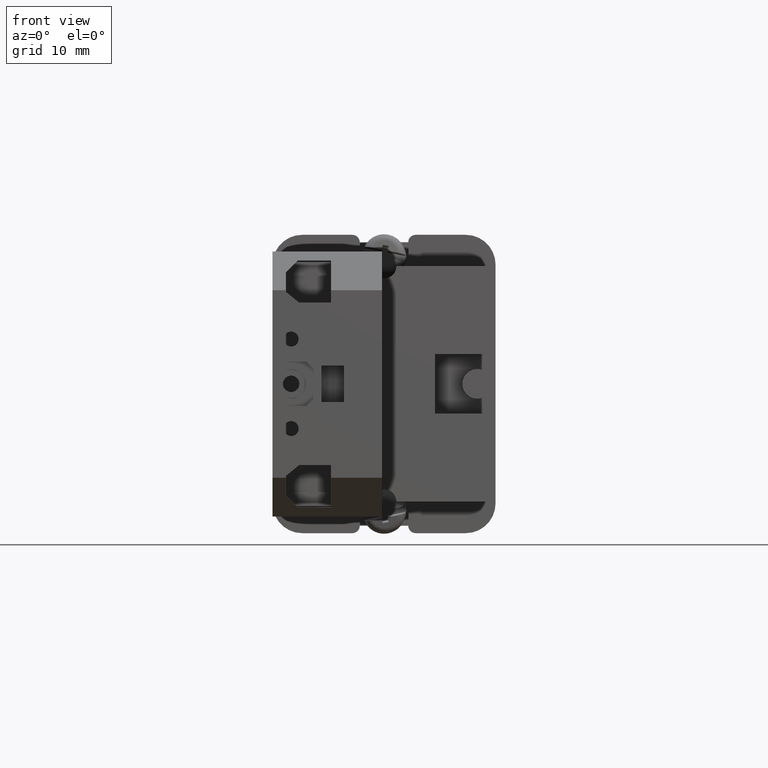
[diagram: clean part render]
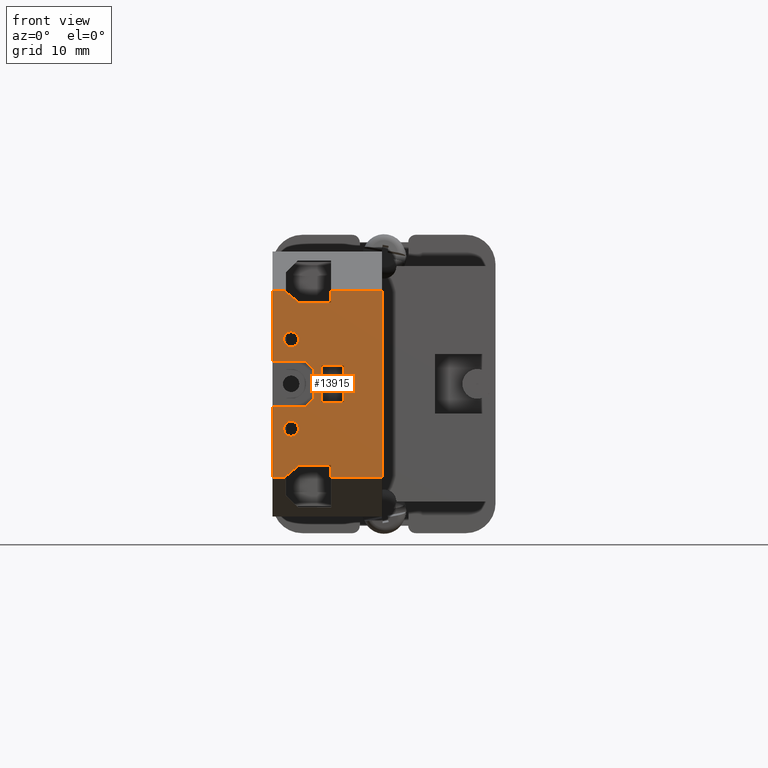
[diagram: same view with one face highlighted and labeled with its STEP entity id]
A machine part, front view. The second image highlights one B-rep face of the part: STEP entity #13915.
In plain terms, the highlighted planar face has unit normal (0, 1, -0).
Its self-contained STEP definition (entity closure, byte-faithful):
#47 = LINE ( 'NONE', #8885, #5474 ) ;
#50 = CARTESIAN_POINT ( 'NONE',  ( 0.2598425196850393500, -0.4948044124201464400, -1.023622047244092900 ) ) ;
#52 = EDGE_CURVE ( 'NONE', #8519, #6501, #5180, .T. ) ;
#60 = LINE ( 'NONE', #2749, #2587 ) ;
#243 = CARTESIAN_POINT ( 'NONE',  ( -0.04978773008296109200, -5.742549480751950100E-018, -1.023622047244092900 ) ) ;
#281 = CIRCLE ( 'NONE', #10714, 0.03937007874015724400 ) ;
#290 = DIRECTION ( 'NONE',  ( 0.0000000000000000000, -1.000000000000000000, -1.518293247594904000E-015 ) ) ;
#453 = DIRECTION ( 'NONE',  ( 0.0000000000000000000, 0.0000000000000000000, 1.000000000000000000 ) ) ;
#473 = DIRECTION ( 'NONE',  ( 0.7071067811865520100, 0.7071067811865430200, 0.0000000000000000000 ) ) ;
#506 = CARTESIAN_POINT ( 'NONE',  ( -0.04974562058439412100, 5.737692543536143000E-018, -1.023622047244092900 ) ) ;
#588 = EDGE_CURVE ( 'NONE', #11053, #6271, #4988, .T. ) ;
#638 = CARTESIAN_POINT ( 'NONE',  ( 0.2598425196850393500, 0.4948044124201465600, -1.023622047244091600 ) ) ;
#696 = VECTOR ( 'NONE', #2776, 39.37007874015748100 ) ;
#700 = CARTESIAN_POINT ( 'NONE',  ( 0.1889763779527559300, 0.4859763636628803800, -1.023622047244092900 ) ) ;
#716 = DIRECTION ( 'NONE',  ( 1.000000000000000000, 0.0000000000000000000, 0.0000000000000000000 ) ) ;
#726 = CARTESIAN_POINT ( 'NONE',  ( -0.1623979967168369400, 0.1984824297787461900, -1.023622047244092900 ) ) ;
#818 = DIRECTION ( 'NONE',  ( 0.0000000000000000000, 0.0000000000000000000, 1.000000000000000000 ) ) ;
#828 = AXIS2_PLACEMENT_3D ( 'NONE', #1992, #13171, #6375 ) ;
#962 = EDGE_CURVE ( 'NONE', #8519, #7298, #3104, .T. ) ;
#1004 = EDGE_CURVE ( 'NONE', #11552, #4191, #14267, .T. ) ;
#1167 = CARTESIAN_POINT ( 'NONE',  ( 0.2007874015748015400, -0.2362204724409445700, -1.023622047244092900 ) ) ;
#1205 = EDGE_CURVE ( 'NONE', #11646, #7646, #9168, .T. ) ;
#1292 = CARTESIAN_POINT ( 'NONE',  ( 0.1220472440944870400, -0.2362204724409445700, -1.023622047244092900 ) ) ;
#1330 = CARTESIAN_POINT ( 'NONE',  ( 0.2598425196850383500, 0.1181102362204726100, -1.023622047244092900 ) ) ;
#1410 = VECTOR ( 'NONE', #4995, 39.37007874015748100 ) ;
#1458 = VECTOR ( 'NONE', #5986, 39.37007874015748100 ) ;
#1576 = CARTESIAN_POINT ( 'NONE',  ( -0.3188976377952755800, -0.4948044124201464400, -1.023622047244092900 ) ) ;
#1614 = CARTESIAN_POINT ( 'NONE',  ( -0.1624104158915052100, -0.1984976084632975300, -1.023622047244092900 ) ) ;
#1729 = ORIENTED_EDGE ( 'NONE', *, *, #3359, .T. ) ;
#1796 = VERTEX_POINT ( 'NONE', #1167 ) ;
#1876 = CARTESIAN_POINT ( 'NONE',  ( 0.2598425196850384100, -0.1181102362204745300, -1.023622047244092900 ) ) ;
#1886 = EDGE_CURVE ( 'NONE', #8914, #6584, #11629, .T. ) ;
#1888 = VECTOR ( 'NONE', #11294, 39.37007874015748100 ) ;
#1992 = CARTESIAN_POINT ( 'NONE',  ( -0.3188976377952755800, 1.554158442419976800E-015, -1.023622047244092200 ) ) ;
#2116 = FACE_OUTER_BOUND ( 'NONE', #7498, .T. ) ;
#2241 = LINE ( 'NONE', #5281, #7760 ) ;
#2286 = VECTOR ( 'NONE', #13609, 39.37007874015748100 ) ;
#2415 = DIRECTION ( 'NONE',  ( 1.000000000000000000, -1.011922027653141800E-014, 0.0000000000000000000 ) ) ;
#2465 = VECTOR ( 'NONE', #5227, 39.37007874015748100 ) ;
#2587 = VECTOR ( 'NONE', #9378, 39.37007874015748100 ) ;
#2641 = VECTOR ( 'NONE', #5465, 39.37007874015748100 ) ;
#2707 = DIRECTION ( 'NONE',  ( 0.7739510281170707300, -0.6332454548407980800, 0.0000000000000000000 ) ) ;
#2749 = CARTESIAN_POINT ( 'NONE',  ( 0.0000000000000000000, -0.0000000000000000000, -1.023622047244092900 ) ) ;
#2767 = VECTOR ( 'NONE', #473, 39.37007874015748100 ) ;
#2776 = DIRECTION ( 'NONE',  ( 3.374948396842037500E-016, 1.000000000000000000, 0.0000000000000000000 ) ) ;
#2783 = VERTEX_POINT ( 'NONE', #1292 ) ;
#2807 = CARTESIAN_POINT ( 'NONE',  ( 0.2598425196850393500, 1.554158442419976800E-015, -1.023622047244092200 ) ) ;
#2838 = ORIENTED_EDGE ( 'NONE', *, *, #9691, .T. ) ;
#2869 = LINE ( 'NONE', #7944, #10684 ) ;
#2892 = ORIENTED_EDGE ( 'NONE', *, *, #13854, .T. ) ;
#2920 = LINE ( 'NONE', #1614, #3263 ) ;
#2940 = EDGE_CURVE ( 'NONE', #7646, #4744, #2920, .T. ) ;
#2978 = LINE ( 'NONE', #506, #8516 ) ;
#2986 = ORIENTED_EDGE ( 'NONE', *, *, #13887, .T. ) ;
#2988 = EDGE_CURVE ( 'NONE', #12198, #4191, #60, .T. ) ;
#3062 = CARTESIAN_POINT ( 'NONE',  ( 0.1889763779527559300, 0.4948044124201453300, -1.023622047244092900 ) ) ;
#3104 = LINE ( 'NONE', #3672, #2767 ) ;
#3201 = CIRCLE ( 'NONE', #13582, 0.03937007874015724400 ) ;
#3255 = EDGE_CURVE ( 'NONE', #10708, #12198, #47, .T. ) ;
#3263 = VECTOR ( 'NONE', #2707, 39.37007874015748100 ) ;
#3325 = VERTEX_POINT ( 'NONE', #1330 ) ;
#3359 = EDGE_CURVE ( 'NONE', #4156, #8914, #13751, .T. ) ;
#3382 = VECTOR ( 'NONE', #14116, 39.37007874015748100 ) ;
#3438 = EDGE_CURVE ( 'NONE', #3963, #13221, #5290, .T. ) ;
#3466 = VECTOR ( 'NONE', #5301, 39.37007874015748100 ) ;
#3514 = ORIENTED_EDGE ( 'NONE', *, *, #1886, .T. ) ;
#3672 = CARTESIAN_POINT ( 'NONE',  ( -0.01771653543307390500, 0.01771653543307413100, -1.023622047244092900 ) ) ;
#3722 = EDGE_CURVE ( 'NONE', #9776, #3866, #5799, .T. ) ;
#3833 = VECTOR ( 'NONE', #10380, 39.37007874015748100 ) ;
#3866 = VERTEX_POINT ( 'NONE', #3062 ) ;
#3963 = VERTEX_POINT ( 'NONE', #13180 ) ;
#4119 = CARTESIAN_POINT ( 'NONE',  ( -0.01771653543307093200, -0.01771653543307084900, -1.023622047244092900 ) ) ;
#4151 = CARTESIAN_POINT ( 'NONE',  ( -0.1181102362204744700, 6.690239984484036300E-016, -1.023622047244092900 ) ) ;
#4156 = VERTEX_POINT ( 'NONE', #12347 ) ;
#4191 = VERTEX_POINT ( 'NONE', #13561 ) ;
#4195 = ORIENTED_EDGE ( 'NONE', *, *, #14239, .F. ) ;
#4363 = CARTESIAN_POINT ( 'NONE',  ( 2.231009194825904000E-015, 0.1181102362204775000, -1.023622047244092900 ) ) ;
#4522 = CIRCLE ( 'NONE', #12170, 0.03937007874015724400 ) ;
#4530 = CARTESIAN_POINT ( 'NONE',  ( -0.04974562058439417600, -0.4948044124201462800, -1.023622047244092900 ) ) ;
#4564 = CARTESIAN_POINT ( 'NONE',  ( -0.04978773008296114000, 0.4291338582677189900, -1.023622047244092900 ) ) ;
#4619 = CARTESIAN_POINT ( 'NONE',  ( -0.1181102362204739100, 0.09645669291338582200, -1.023622047244092900 ) ) ;
#4654 = CARTESIAN_POINT ( 'NONE',  ( -0.3188976377952755800, 0.4948044124201465600, -1.023622047244091600 ) ) ;
#4744 = VERTEX_POINT ( 'NONE', #11955 ) ;
#4960 = ORIENTED_EDGE ( 'NONE', *, *, #7806, .F. ) ;
#4988 = LINE ( 'NONE', #9034, #7582 ) ;
#4995 = DIRECTION ( 'NONE',  ( 0.0000000000000000000, -1.000000000000000000, -1.518293247594904000E-015 ) ) ;
#5173 = CARTESIAN_POINT ( 'NONE',  ( 0.1195036084997276200, -0.4291591983005066900, -1.023622047244092900 ) ) ;
#5180 = LINE ( 'NONE', #5727, #2286 ) ;
#5227 = DIRECTION ( 'NONE',  ( 0.7071067811865459100, -0.7071067811865492400, 0.0000000000000000000 ) ) ;
#5281 = CARTESIAN_POINT ( 'NONE',  ( 0.2598425196850393500, 1.554158442419976800E-015, -1.023622047244092200 ) ) ;
#5290 = CIRCLE ( 'NONE', #13191, 0.03937007874015724400 ) ;
#5301 = DIRECTION ( 'NONE',  ( 5.664403186863054100E-015, 1.000000000000000000, 0.0000000000000000000 ) ) ;
#5465 = DIRECTION ( 'NONE',  ( 1.000000000000000000, -1.888921118285851200E-014, 0.0000000000000000000 ) ) ;
#5474 = VECTOR ( 'NONE', #7747, 39.37007874015748100 ) ;
#5548 = ORIENTED_EDGE ( 'NONE', *, *, #3438, .T. ) ;
#5566 = ORIENTED_EDGE ( 'NONE', *, *, #8068, .F. ) ;
#5638 = DIRECTION ( 'NONE',  ( 1.000000000000000000, 1.936435508067001800E-014, 0.0000000000000000000 ) ) ;
#5640 = CARTESIAN_POINT ( 'NONE',  ( 0.04330708661417194400, 0.07874015748031919200, -1.023622047244092900 ) ) ;
#5644 = VECTOR ( 'NONE', #5638, 39.37007874015748100 ) ;
#5727 = CARTESIAN_POINT ( 'NONE',  ( 0.04330708661417236700, 2.371158688250668700E-016, -1.023622047244092900 ) ) ;
#5751 = EDGE_LOOP ( 'NONE', ( #10748, #8276, #9166, #4195 ) ) ;
#5799 = LINE ( 'NONE', #9423, #696 ) ;
#5933 = CARTESIAN_POINT ( 'NONE',  ( 0.0000000000000000000, -0.09645669291338548900, -1.023622047244092900 ) ) ;
#5956 = LINE ( 'NONE', #6247, #3382 ) ;
#5972 = EDGE_CURVE ( 'NONE', #13611, #12131, #2869, .T. ) ;
#5986 = DIRECTION ( 'NONE',  ( 1.000000000000000000, 0.0000000000000000000, 0.0000000000000000000 ) ) ;
#6184 = ORIENTED_EDGE ( 'NONE', *, *, #7450, .F. ) ;
#6247 = CARTESIAN_POINT ( 'NONE',  ( 0.1889763779527559300, 0.0000000000000000000, -1.023622047244092900 ) ) ;
#6271 = VERTEX_POINT ( 'NONE', #1876 ) ;
#6275 = DIRECTION ( 'NONE',  ( 0.0000000000000000000, 0.0000000000000000000, 1.000000000000000000 ) ) ;
#6284 = EDGE_CURVE ( 'NONE', #13221, #3963, #3201, .T. ) ;
#6345 = ORIENTED_EDGE ( 'NONE', *, *, #11041, .T. ) ;
#6375 = DIRECTION ( 'NONE',  ( 0.0000000000000000000, -1.000000000000000000, -1.518293247594904000E-015 ) ) ;
#6475 = CARTESIAN_POINT ( 'NONE',  ( 0.1614173228346443000, 0.2362204724409440700, -1.023622047244092900 ) ) ;
#6501 = VERTEX_POINT ( 'NONE', #13529 ) ;
#6584 = VERTEX_POINT ( 'NONE', #7970 ) ;
#6698 = CARTESIAN_POINT ( 'NONE',  ( -8.309900408634051400E-015, 0.4291338582677199400, -1.023622047244092900 ) ) ;
#6713 = CARTESIAN_POINT ( 'NONE',  ( 0.1889763779527559300, -0.4948044124201462800, -1.023622047244092900 ) ) ;
#6764 = LINE ( 'NONE', #1576, #3833 ) ;
#6982 = CARTESIAN_POINT ( 'NONE',  ( 0.1614173228346443000, -0.2362204724409445700, -1.023622047244092900 ) ) ;
#7074 = ORIENTED_EDGE ( 'NONE', *, *, #3722, .T. ) ;
#7258 = CARTESIAN_POINT ( 'NONE',  ( -0.3188976377952755800, 0.4948044124201465600, -1.023622047244091600 ) ) ;
#7298 = VERTEX_POINT ( 'NONE', #13842 ) ;
#7352 = CARTESIAN_POINT ( 'NONE',  ( 0.1614173228346443000, -0.2362204724409445700, -1.023622047244092900 ) ) ;
#7415 = EDGE_CURVE ( 'NONE', #2783, #1796, #4522, .T. ) ;
#7450 = EDGE_CURVE ( 'NONE', #9482, #12568, #6764, .T. ) ;
#7470 = VECTOR ( 'NONE', #14082, 39.37007874015748900 ) ;
#7498 = EDGE_LOOP ( 'NONE', ( #9412, #13678, #13362, #9247, #5566, #8272, #2838, #1729, #3514, #7941, #7074, #11025, #9518, #4960, #8662, #12072, #2986, #11972, #6345, #6184 ) ) ;
#7557 = EDGE_CURVE ( 'NONE', #3866, #11700, #7989, .T. ) ;
#7582 = VECTOR ( 'NONE', #2415, 39.37007874015748100 ) ;
#7587 = DIRECTION ( 'NONE',  ( 1.000000000000000000, 0.0000000000000000000, 0.0000000000000000000 ) ) ;
#7616 = VECTOR ( 'NONE', #10404, 39.37007874015748100 ) ;
#7646 = VERTEX_POINT ( 'NONE', #5173 ) ;
#7747 = DIRECTION ( 'NONE',  ( 1.000000000000000000, 0.0000000000000000000, 0.0000000000000000000 ) ) ;
#7760 = VECTOR ( 'NONE', #14258, 39.37007874015748100 ) ;
#7806 = EDGE_CURVE ( 'NONE', #7298, #3325, #8151, .T. ) ;
#7941 = ORIENTED_EDGE ( 'NONE', *, *, #13324, .T. ) ;
#7944 = CARTESIAN_POINT ( 'NONE',  ( -0.3188976377952755800, 1.554158442419976800E-015, -1.023622047244092200 ) ) ;
#7970 = CARTESIAN_POINT ( 'NONE',  ( 0.1195036084997275500, 0.4291338582677222700, -1.023622047244092900 ) ) ;
#7972 = LINE ( 'NONE', #13775, #7616 ) ;
#7989 = LINE ( 'NONE', #7258, #13999 ) ;
#8068 = EDGE_CURVE ( 'NONE', #12131, #10646, #7972, .T. ) ;
#8099 = DIRECTION ( 'NONE',  ( 1.000000000000000000, 0.0000000000000000000, 0.0000000000000000000 ) ) ;
#8115 = DIRECTION ( 'NONE',  ( 1.000000000000000000, 0.0000000000000000000, 0.0000000000000000000 ) ) ;
#8149 = DIRECTION ( 'NONE',  ( -1.153406566473941000E-016, -1.000000000000000000, 0.0000000000000000000 ) ) ;
#8151 = LINE ( 'NONE', #4363, #2641 ) ;
#8205 = CARTESIAN_POINT ( 'NONE',  ( -0.04974562058439416900, -0.4291591983005065300, -1.023622047244092900 ) ) ;
#8272 = ORIENTED_EDGE ( 'NONE', *, *, #5972, .F. ) ;
#8276 = ORIENTED_EDGE ( 'NONE', *, *, #2988, .F. ) ;
#8493 = DIRECTION ( 'NONE',  ( 1.000000000000000000, 0.0000000000000000000, 0.0000000000000000000 ) ) ;
#8516 = VECTOR ( 'NONE', #8149, 39.37007874015748100 ) ;
#8519 = VERTEX_POINT ( 'NONE', #5640 ) ;
#8523 = EDGE_LOOP ( 'NONE', ( #13057, #2892 ) ) ;
#8662 = ORIENTED_EDGE ( 'NONE', *, *, #962, .F. ) ;
#8885 = CARTESIAN_POINT ( 'NONE',  ( 0.0000000000000000000, 0.09645669291338582200, -1.023622047244092900 ) ) ;
#8914 = VERTEX_POINT ( 'NONE', #4564 ) ;
#9033 = CARTESIAN_POINT ( 'NONE',  ( -0.3188976377952755800, -0.4948044124201464400, -1.023622047244092900 ) ) ;
#9034 = CARTESIAN_POINT ( 'NONE',  ( -1.195183497228114900E-015, -0.1181102362204719000, -1.023622047244092900 ) ) ;
#9166 = ORIENTED_EDGE ( 'NONE', *, *, #3255, .F. ) ;
#9168 = LINE ( 'NONE', #11974, #11465 ) ;
#9247 = ORIENTED_EDGE ( 'NONE', *, *, #13673, .T. ) ;
#9318 = CARTESIAN_POINT ( 'NONE',  ( -0.3188976377952755800, 0.4948044124201465600, -1.023622047244091600 ) ) ;
#9378 = DIRECTION ( 'NONE',  ( 0.0000000000000000000, -1.000000000000000000, 0.0000000000000000000 ) ) ;
#9412 = ORIENTED_EDGE ( 'NONE', *, *, #11787, .T. ) ;
#9423 = CARTESIAN_POINT ( 'NONE',  ( 0.1889763779527557600, -6.377855238126680700E-017, -1.023622047244092900 ) ) ;
#9482 = VERTEX_POINT ( 'NONE', #6713 ) ;
#9518 = ORIENTED_EDGE ( 'NONE', *, *, #10905, .T. ) ;
#9691 = EDGE_CURVE ( 'NONE', #13611, #4156, #10267, .T. ) ;
#9694 = DIRECTION ( 'NONE',  ( 1.000000000000000000, 0.0000000000000000000, 0.0000000000000000000 ) ) ;
#9729 = LINE ( 'NONE', #4151, #3466 ) ;
#9776 = VERTEX_POINT ( 'NONE', #700 ) ;
#10022 = ORIENTED_EDGE ( 'NONE', *, *, #6284, .T. ) ;
#10226 = LINE ( 'NONE', #2807, #1410 ) ;
#10267 = LINE ( 'NONE', #9318, #1458 ) ;
#10338 = EDGE_LOOP ( 'NONE', ( #10022, #5548 ) ) ;
#10368 = CARTESIAN_POINT ( 'NONE',  ( 0.0000000000000000000, 0.09645669291338582200, -1.023622047244092900 ) ) ;
#10380 = DIRECTION ( 'NONE',  ( 1.000000000000000000, 0.0000000000000000000, 0.0000000000000000000 ) ) ;
#10404 = DIRECTION ( 'NONE',  ( 1.000000000000000000, 0.0000000000000000000, 0.0000000000000000000 ) ) ;
#10472 = LINE ( 'NONE', #726, #7470 ) ;
#10618 = FACE_BOUND ( 'NONE', #5751, .T. ) ;
#10646 = VERTEX_POINT ( 'NONE', #4530 ) ;
#10684 = VECTOR ( 'NONE', #290, 39.37007874015748100 ) ;
#10708 = VERTEX_POINT ( 'NONE', #4619 ) ;
#10714 = AXIS2_PLACEMENT_3D ( 'NONE', #7352, #818, #8493 ) ;
#10748 = ORIENTED_EDGE ( 'NONE', *, *, #1004, .T. ) ;
#10857 = PLANE ( 'NONE',  #828 ) ;
#10905 = EDGE_CURVE ( 'NONE', #11700, #3325, #10226, .T. ) ;
#11025 = ORIENTED_EDGE ( 'NONE', *, *, #7557, .T. ) ;
#11041 = EDGE_CURVE ( 'NONE', #6271, #12568, #2241, .T. ) ;
#11053 = VERTEX_POINT ( 'NONE', #12064 ) ;
#11294 = DIRECTION ( 'NONE',  ( 1.153406566473941000E-016, -1.000000000000000000, 0.0000000000000000000 ) ) ;
#11465 = VECTOR ( 'NONE', #9694, 39.37007874015748100 ) ;
#11552 = VERTEX_POINT ( 'NONE', #12513 ) ;
#11587 = CARTESIAN_POINT ( 'NONE',  ( 0.1220472440944870400, 0.2362204724409440700, -1.023622047244092900 ) ) ;
#11629 = LINE ( 'NONE', #6698, #5644 ) ;
#11646 = VERTEX_POINT ( 'NONE', #8205 ) ;
#11700 = VERTEX_POINT ( 'NONE', #638 ) ;
#11787 = EDGE_CURVE ( 'NONE', #9482, #4744, #5956, .T. ) ;
#11955 = CARTESIAN_POINT ( 'NONE',  ( 0.1889763779527559300, -0.4860017036956648700, -1.023622047244092900 ) ) ;
#11972 = ORIENTED_EDGE ( 'NONE', *, *, #588, .T. ) ;
#11974 = CARTESIAN_POINT ( 'NONE',  ( 0.0000000000000000000, -0.4291591983005065300, -1.023622047244092900 ) ) ;
#12046 = LINE ( 'NONE', #4119, #2465 ) ;
#12064 = CARTESIAN_POINT ( 'NONE',  ( 0.08267716535433047900, -0.1181102362204727300, -1.023622047244092900 ) ) ;
#12072 = ORIENTED_EDGE ( 'NONE', *, *, #52, .T. ) ;
#12131 = VERTEX_POINT ( 'NONE', #9033 ) ;
#12170 = AXIS2_PLACEMENT_3D ( 'NONE', #6982, #453, #8099 ) ;
#12198 = VERTEX_POINT ( 'NONE', #10368 ) ;
#12347 = CARTESIAN_POINT ( 'NONE',  ( -0.04978773008296116800, 0.4948044124201465600, -1.023622047244091600 ) ) ;
#12357 = VECTOR ( 'NONE', #8115, 39.37007874015748100 ) ;
#12513 = CARTESIAN_POINT ( 'NONE',  ( -0.1181102362204750100, -0.09645669291338548900, -1.023622047244092900 ) ) ;
#12568 = VERTEX_POINT ( 'NONE', #50 ) ;
#13050 = CARTESIAN_POINT ( 'NONE',  ( 0.1614173228346443000, 0.2362204724409440700, -1.023622047244092900 ) ) ;
#13057 = ORIENTED_EDGE ( 'NONE', *, *, #7415, .T. ) ;
#13171 = DIRECTION ( 'NONE',  ( 0.0000000000000000000, -1.518293247594904000E-015, 1.000000000000000000 ) ) ;
#13180 = CARTESIAN_POINT ( 'NONE',  ( 0.2007874015748015400, 0.2362204724409440700, -1.023622047244092900 ) ) ;
#13191 = AXIS2_PLACEMENT_3D ( 'NONE', #6475, #14336, #7587 ) ;
#13221 = VERTEX_POINT ( 'NONE', #11587 ) ;
#13324 = EDGE_CURVE ( 'NONE', #6584, #9776, #10472, .T. ) ;
#13362 = ORIENTED_EDGE ( 'NONE', *, *, #1205, .F. ) ;
#13529 = CARTESIAN_POINT ( 'NONE',  ( 0.04330708661417280400, -0.07874015748031487600, -1.023622047244092900 ) ) ;
#13561 = CARTESIAN_POINT ( 'NONE',  ( 0.0000000000000000000, -0.09645669291338548900, -1.023622047244092200 ) ) ;
#13582 = AXIS2_PLACEMENT_3D ( 'NONE', #13050, #6275, #14144 ) ;
#13609 = DIRECTION ( 'NONE',  ( 5.475220971051653000E-015, -1.000000000000000000, 0.0000000000000000000 ) ) ;
#13611 = VERTEX_POINT ( 'NONE', #4654 ) ;
#13645 = FACE_BOUND ( 'NONE', #8523, .T. ) ;
#13673 = EDGE_CURVE ( 'NONE', #11646, #10646, #2978, .T. ) ;
#13678 = ORIENTED_EDGE ( 'NONE', *, *, #2940, .F. ) ;
#13751 = LINE ( 'NONE', #243, #1888 ) ;
#13775 = CARTESIAN_POINT ( 'NONE',  ( -0.3188976377952755800, -0.4948044124201464400, -1.023622047244092900 ) ) ;
#13842 = CARTESIAN_POINT ( 'NONE',  ( 0.08267716535432918800, 0.1181102362204759400, -1.023622047244092900 ) ) ;
#13854 = EDGE_CURVE ( 'NONE', #1796, #2783, #281, .T. ) ;
#13887 = EDGE_CURVE ( 'NONE', #6501, #11053, #12046, .T. ) ;
#13915 = ADVANCED_FACE ( 'NONE', ( #13988, #10618, #2116, #13645 ), #10857, .F. ) ;
#13988 = FACE_BOUND ( 'NONE', #10338, .T. ) ;
#13999 = VECTOR ( 'NONE', #716, 39.37007874015748100 ) ;
#14082 = DIRECTION ( 'NONE',  ( 0.7739510281170713900, 0.6332454548407972000, 0.0000000000000000000 ) ) ;
#14116 = DIRECTION ( 'NONE',  ( 0.0000000000000000000, 1.000000000000000000, -0.0000000000000000000 ) ) ;
#14144 = DIRECTION ( 'NONE',  ( 1.000000000000000000, 0.0000000000000000000, 0.0000000000000000000 ) ) ;
#14239 = EDGE_CURVE ( 'NONE', #11552, #10708, #9729, .T. ) ;
#14258 = DIRECTION ( 'NONE',  ( 0.0000000000000000000, -1.000000000000000000, -1.518293247594904000E-015 ) ) ;
#14267 = LINE ( 'NONE', #5933, #12357 ) ;
#14336 = DIRECTION ( 'NONE',  ( 0.0000000000000000000, 0.0000000000000000000, 1.000000000000000000 ) ) ;